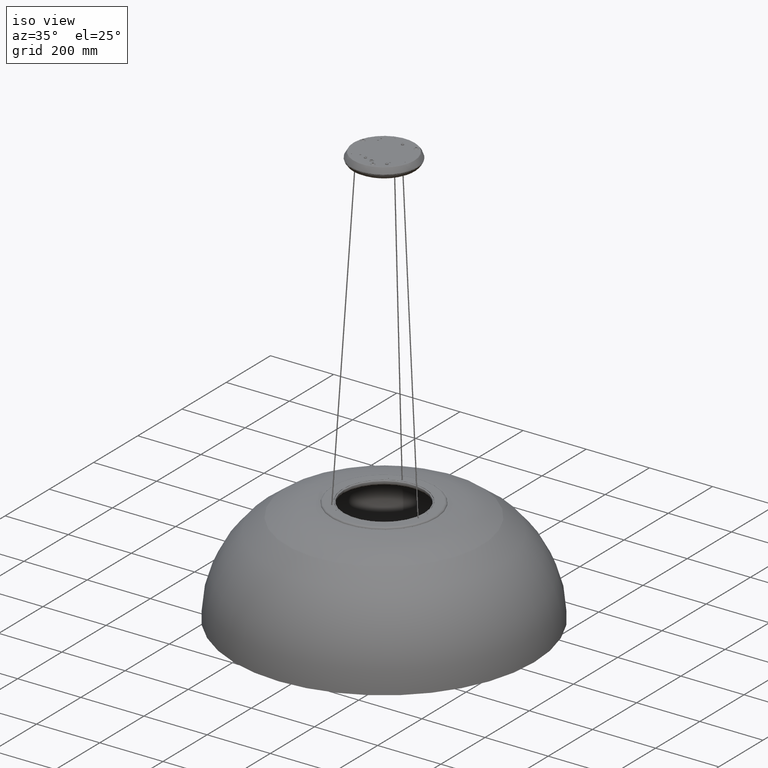
[diagram: clean part render]
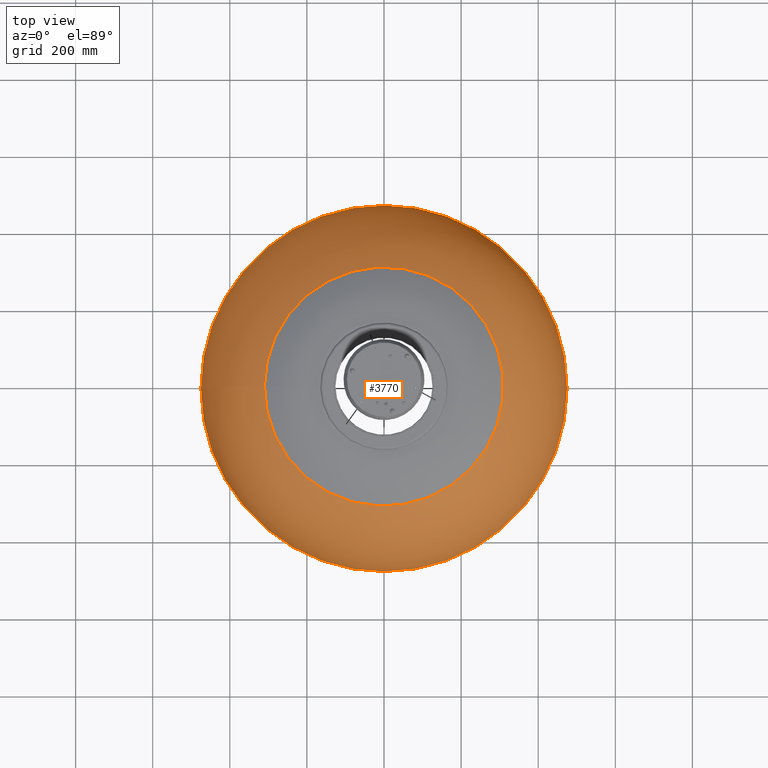
[diagram: tour spotlight — one face highlighted and labeled with its STEP entity id]
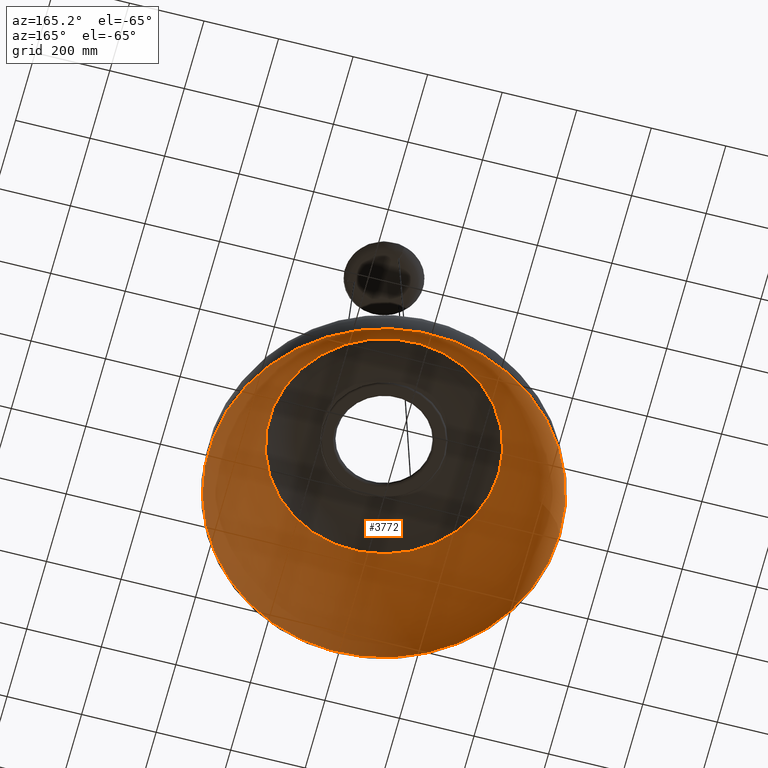
[diagram: tour spotlight — one face highlighted and labeled with its STEP entity id]
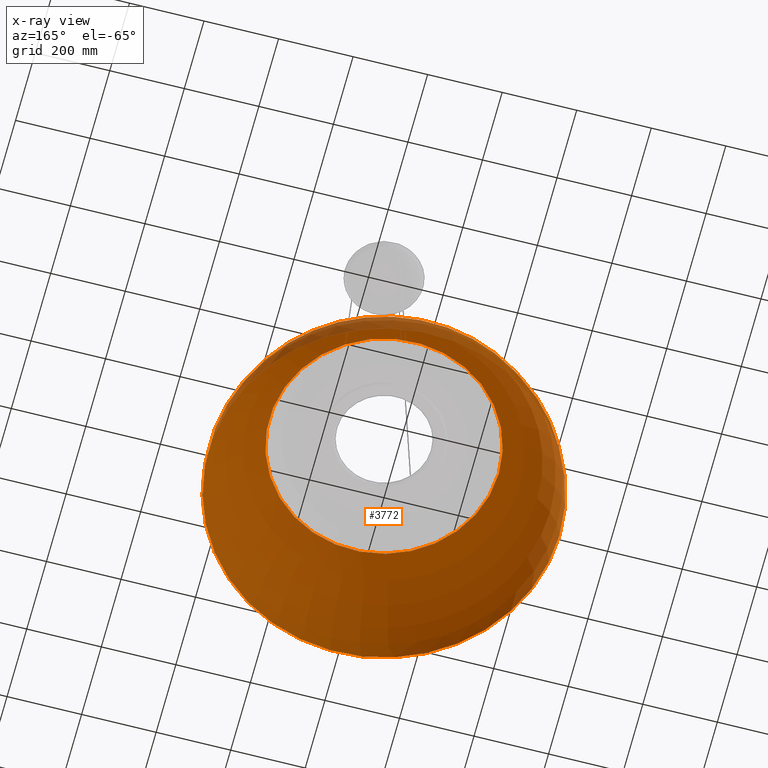
[diagram: x-ray of the same camera — body ghosted, this tour face saturated]
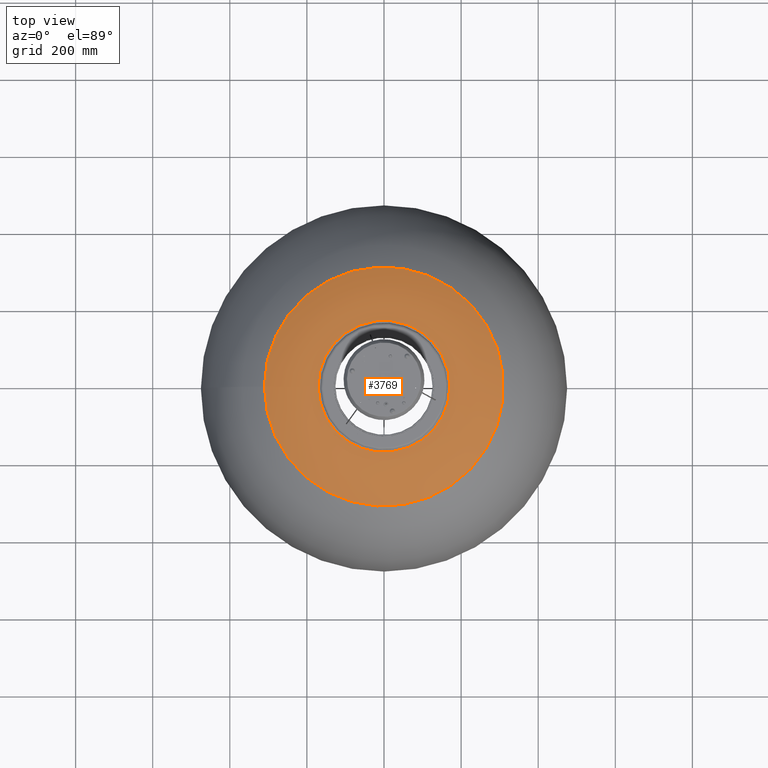
[diagram: tour spotlight — one face highlighted and labeled with its STEP entity id]
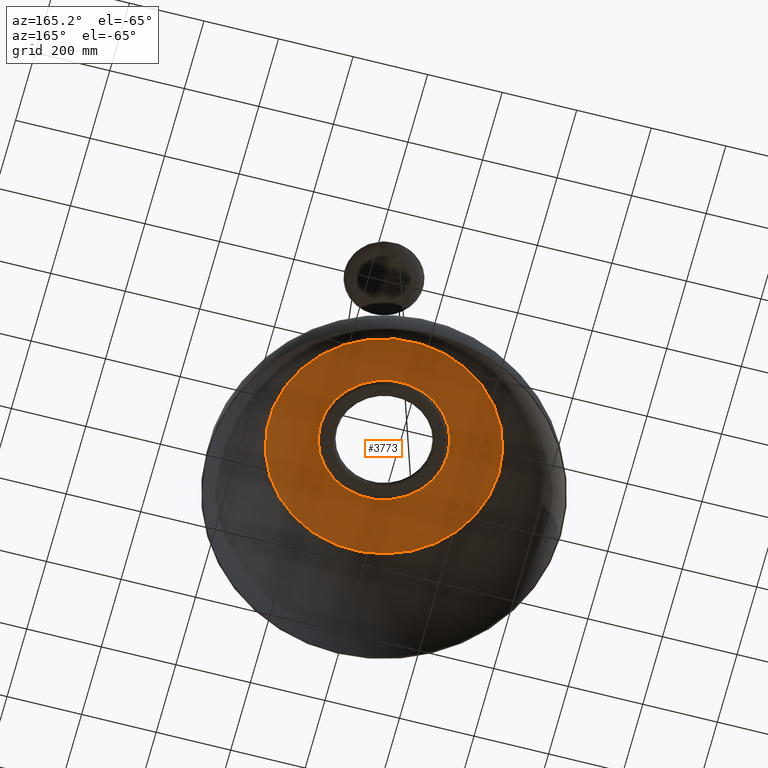
[diagram: tour spotlight — one face highlighted and labeled with its STEP entity id]
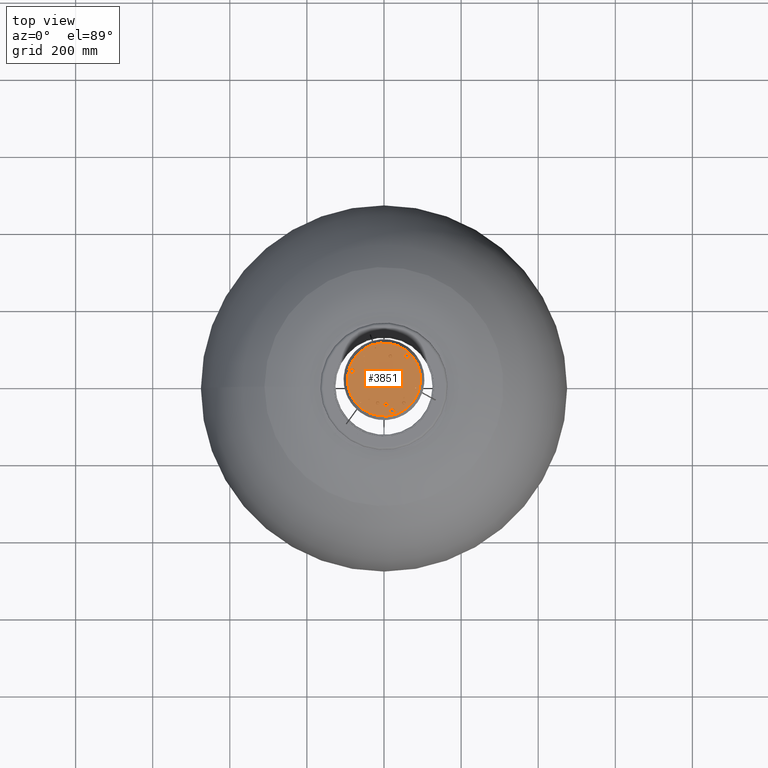
[diagram: tour spotlight — one face highlighted and labeled with its STEP entity id]
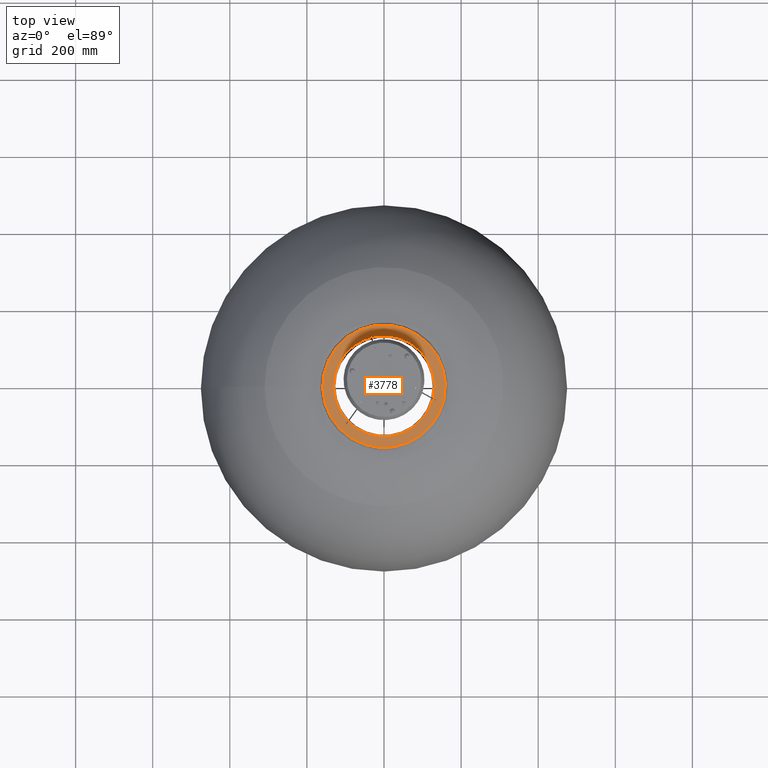
[diagram: tour spotlight — one face highlighted and labeled with its STEP entity id]
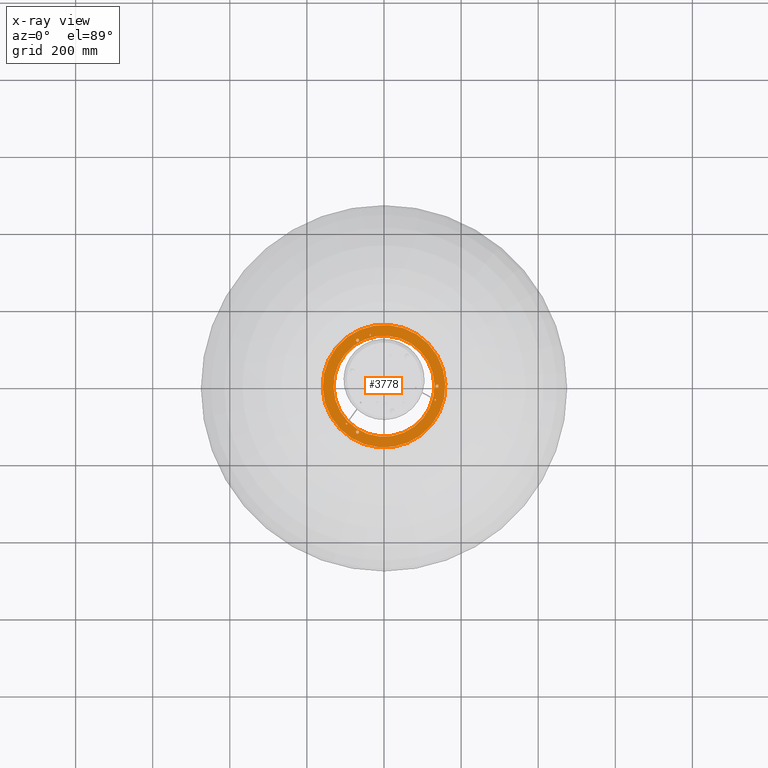
[diagram: x-ray of the same camera — body ghosted, this tour face saturated]
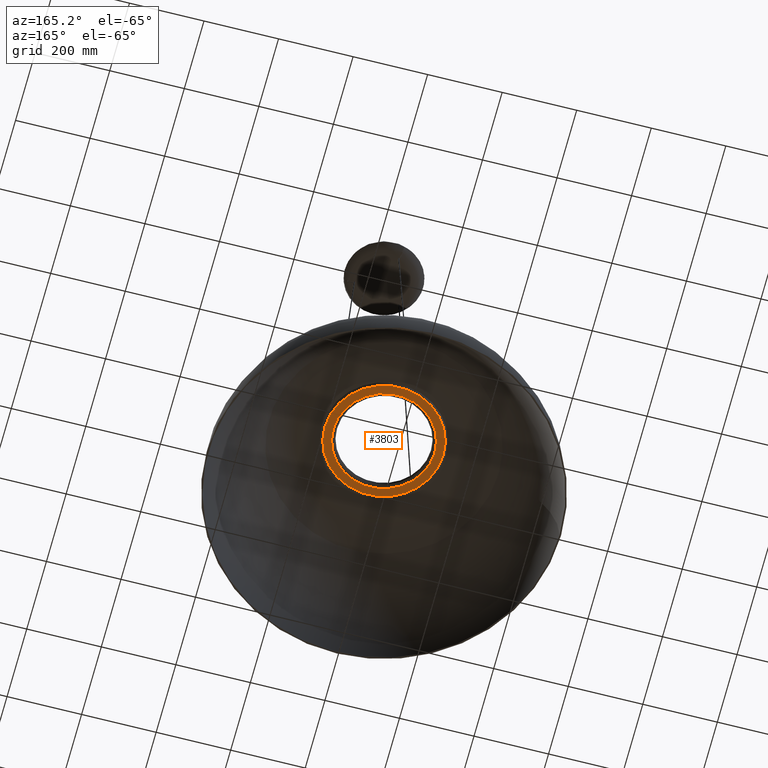
[diagram: tour spotlight — one face highlighted and labeled with its STEP entity id]
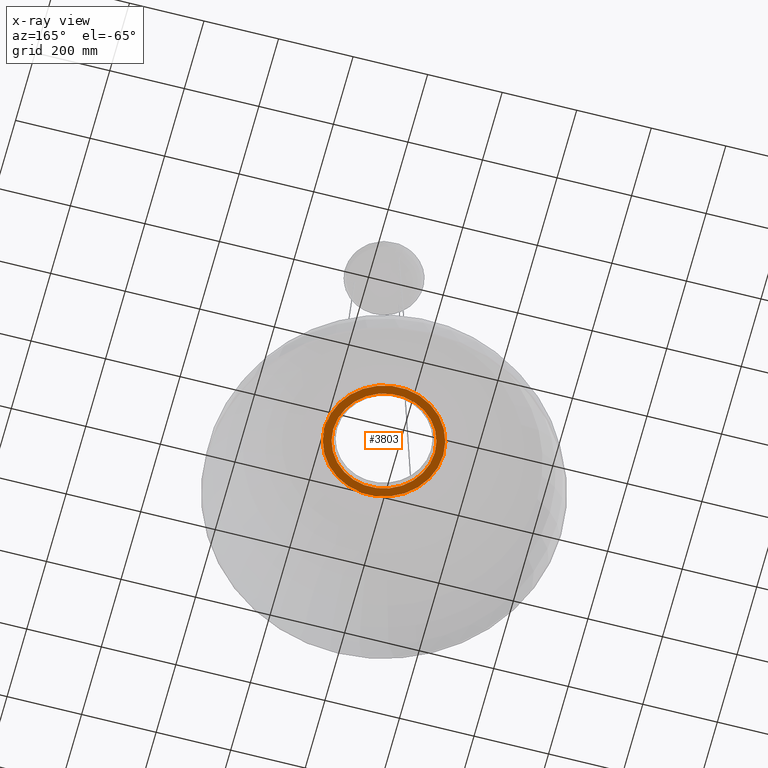
[diagram: x-ray of the same camera — body ghosted, this tour face saturated]
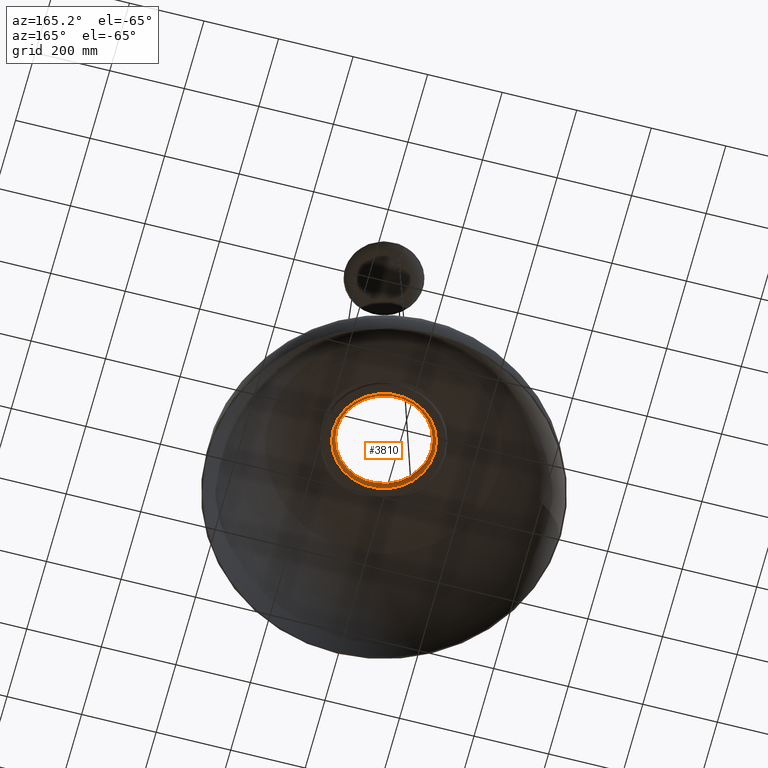
[diagram: tour spotlight — one face highlighted and labeled with its STEP entity id]
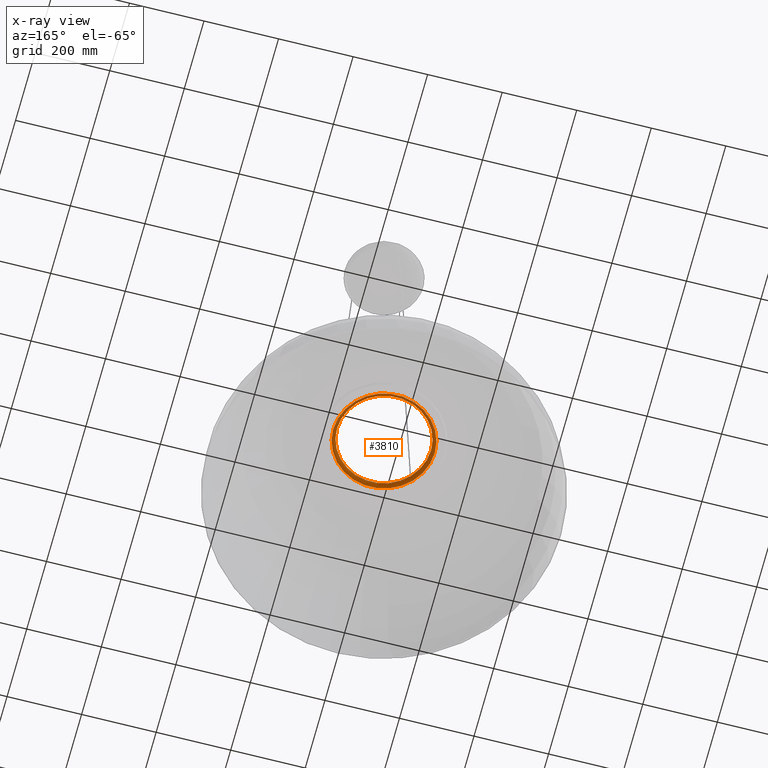
[diagram: x-ray of the same camera — body ghosted, this tour face saturated]
A machine part: a face-by-face anatomy tour. The part has 498 B-rep faces; the first image is the clean iso view, then the 8 largest visible faces are spotlighted one at a time (largest first), each with its STEP entity span.

Face 1 — top view, entity #3770. In plain terms, the highlighted toroidal blend (fillet) surface has major radius 135 mm and minor (blend) radius 340 mm.
Definition (entity closure, byte-faithful):
#760=DEGENERATE_TOROIDAL_SURFACE('',#4901,134.999999999998,340.,.T.);
#770=ORIENTED_EDGE('',*,*,#1741,.F.);
#771=ORIENTED_EDGE('',*,*,#1740,.T.);
#1740=EDGE_CURVE('',#2226,#2226,#2591,.T.);
#1741=EDGE_CURVE('',#2227,#2227,#2592,.T.);
#2226=VERTEX_POINT('',#6640);
#2227=VERTEX_POINT('',#6643);
#2591=CIRCLE('',#4900,310.126776236822);
#2592=CIRCLE('',#4902,474.999999999998);
#2782=EDGE_LOOP('',(#770));
#2783=EDGE_LOOP('',(#771));
#3200=FACE_BOUND('',#2782,.T.);
#3201=FACE_BOUND('',#2783,.T.);
#3770=ADVANCED_FACE('',(#3200,#3201),#760,.T.);
#4900=AXIS2_PLACEMENT_3D('',#6639,#5409,#5410);
#4901=AXIS2_PLACEMENT_3D('',#6641,#5411,#5412);
#4902=AXIS2_PLACEMENT_3D('',#6642,#5413,#5414);
#5409=DIRECTION('',(0.,0.,-1.));
#5410=DIRECTION('',(-1.,0.,0.));
#5411=DIRECTION('',(0.,0.,-1.));
#5412=DIRECTION('',(-1.,0.,0.));
#5413=DIRECTION('',(0.,0.,-1.));
#5414=DIRECTION('',(-1.,0.,0.));
#6639=CARTESIAN_POINT('',(0.,0.,291.428571428571));
#6640=CARTESIAN_POINT('',(-310.126776236822,0.,291.428571428571));
#6641=CARTESIAN_POINT('',(0.,0.,0.));
#6642=CARTESIAN_POINT('',(0.,0.,4.16333634234434E-14));
#6643=CARTESIAN_POINT('',(-474.999999999998,0.,4.16333634234434E-14));

Face 2 — auxiliary view, entity #3772. An x-ray twin of the same camera follows (body ghosted, this face saturated) — the face is partly hidden behind the body. In plain terms, the highlighted toroidal blend (fillet) surface has major radius 135 mm and minor (blend) radius 336 mm.
Definition (entity closure, byte-faithful):
#761=DEGENERATE_TOROIDAL_SURFACE('',#4905,134.999999999998,336.,.T.);
#774=ORIENTED_EDGE('',*,*,#1743,.F.);
#775=ORIENTED_EDGE('',*,*,#1742,.T.);
#1742=EDGE_CURVE('',#2228,#2228,#2593,.T.);
#1743=EDGE_CURVE('',#2229,#2229,#2594,.T.);
#2228=VERTEX_POINT('',#6646);
#2229=VERTEX_POINT('',#6649);
#2593=CIRCLE('',#4904,471.);
#2594=CIRCLE('',#4906,308.066461222271);
#2786=EDGE_LOOP('',(#774));
#2787=EDGE_LOOP('',(#775));
#3204=FACE_BOUND('',#2786,.T.);
#3205=FACE_BOUND('',#2787,.T.);
#3772=ADVANCED_FACE('',(#3204,#3205),#761,.F.);
#4904=AXIS2_PLACEMENT_3D('',#6645,#5417,#5418);
#4905=AXIS2_PLACEMENT_3D('',#6647,#5419,#5420);
#4906=AXIS2_PLACEMENT_3D('',#6648,#5421,#5422);
#5417=DIRECTION('',(0.,0.,-1.));
#5418=DIRECTION('',(-1.,0.,0.));
#5419=DIRECTION('',(0.,0.,-1.));
#5420=DIRECTION('',(-1.,0.,0.));
#5421=DIRECTION('',(0.,0.,-1.));
#5422=DIRECTION('',(-1.,0.,0.));
#6645=CARTESIAN_POINT('',(0.,0.,0.));
#6646=CARTESIAN_POINT('',(-471.,0.,0.));
#6647=CARTESIAN_POINT('',(0.,0.,0.));
#6648=CARTESIAN_POINT('',(0.,0.,287.999999999999));
#6649=CARTESIAN_POINT('',(-308.066461222271,0.,287.999999999999));

Face 3 — top view, entity #3769. In plain terms, the highlighted toroidal blend (fillet) surface has major radius 171.055 mm and minor (blend) radius 270 mm.
Definition (entity closure, byte-faithful):
#759=DEGENERATE_TOROIDAL_SURFACE('',#4899,171.05551275464,270.,.T.);
#768=ORIENTED_EDGE('',*,*,#1740,.F.);
#769=ORIENTED_EDGE('',*,*,#1739,.T.);
#1739=EDGE_CURVE('',#2225,#2225,#2590,.T.);
#1740=EDGE_CURVE('',#2226,#2226,#2591,.T.);
#2225=VERTEX_POINT('',#6637);
#2226=VERTEX_POINT('',#6640);
#2590=CIRCLE('',#4898,171.05551275464);
#2591=CIRCLE('',#4900,310.126776236822);
#2780=EDGE_LOOP('',(#768));
#2781=EDGE_LOOP('',(#769));
#3198=FACE_BOUND('',#2780,.T.);
#3199=FACE_BOUND('',#2781,.T.);
#3769=ADVANCED_FACE('',(#3198,#3199),#759,.T.);
#4898=AXIS2_PLACEMENT_3D('',#6636,#5405,#5406);
#4899=AXIS2_PLACEMENT_3D('',#6638,#5407,#5408);
#4900=AXIS2_PLACEMENT_3D('',#6639,#5409,#5410);
#5405=DIRECTION('',(0.,0.,-1.));
#5406=DIRECTION('',(-1.,0.,0.));
#5407=DIRECTION('',(0.,0.,-1.));
#5408=DIRECTION('',(-1.,0.,0.));
#5409=DIRECTION('',(0.,0.,-1.));
#5410=DIRECTION('',(-1.,0.,0.));
#6636=CARTESIAN_POINT('',(0.,0.,330.));
#6637=CARTESIAN_POINT('',(-171.05551275464,0.,330.));
#6638=CARTESIAN_POINT('',(0.,0.,60.));
#6639=CARTESIAN_POINT('',(0.,0.,291.428571428571));
#6640=CARTESIAN_POINT('',(-310.126776236822,0.,291.428571428571));

Face 4 — auxiliary view, entity #3773. In plain terms, the highlighted toroidal blend (fillet) surface has major radius 171.055 mm and minor (blend) radius 266 mm.
Definition (entity closure, byte-faithful):
#762=DEGENERATE_TOROIDAL_SURFACE('',#4907,171.05551275464,266.,.T.);
#776=ORIENTED_EDGE('',*,*,#1737,.F.);
#777=ORIENTED_EDGE('',*,*,#1743,.T.);
#1737=EDGE_CURVE('',#2223,#2223,#2588,.T.);
#1743=EDGE_CURVE('',#2229,#2229,#2594,.T.);
#2223=VERTEX_POINT('',#6632);
#2229=VERTEX_POINT('',#6649);
#2588=CIRCLE('',#4895,171.05551275464);
#2594=CIRCLE('',#4906,308.066461222271);
#2788=EDGE_LOOP('',(#776));
#2789=EDGE_LOOP('',(#777));
#3206=FACE_BOUND('',#2788,.T.);
#3207=FACE_BOUND('',#2789,.T.);
#3773=ADVANCED_FACE('',(#3206,#3207),#762,.F.);
#4895=AXIS2_PLACEMENT_3D('',#6631,#5399,#5400);
#4906=AXIS2_PLACEMENT_3D('',#6648,#5421,#5422);
#4907=AXIS2_PLACEMENT_3D('',#6650,#5423,#5424);
#5399=DIRECTION('',(0.,0.,-1.));
#5400=DIRECTION('',(-1.,0.,0.));
#5421=DIRECTION('',(0.,0.,-1.));
#5422=DIRECTION('',(-1.,0.,0.));
#5423=DIRECTION('',(0.,0.,-1.));
#5424=DIRECTION('',(-1.,0.,0.));
#6631=CARTESIAN_POINT('',(0.,0.,326.));
#6632=CARTESIAN_POINT('',(-171.05551275464,0.,326.));
#6648=CARTESIAN_POINT('',(0.,0.,287.999999999999));
#6649=CARTESIAN_POINT('',(-308.066461222271,0.,287.999999999999));
#6650=CARTESIAN_POINT('',(0.,0.,60.));

Face 5 — top view, entity #3851. In plain terms, the highlighted planar face has unit normal (0, 0, -1).
Definition (entity closure, byte-faithful):
#1023=ORIENTED_EDGE('',*,*,#1873,.T.);
#1024=ORIENTED_EDGE('',*,*,#1874,.T.);
#1025=ORIENTED_EDGE('',*,*,#1875,.T.);
#1026=ORIENTED_EDGE('',*,*,#1876,.T.);
#1027=ORIENTED_EDGE('',*,*,#1877,.T.);
#1028=ORIENTED_EDGE('',*,*,#1878,.T.);
#1029=ORIENTED_EDGE('',*,*,#1879,.T.);
#1030=ORIENTED_EDGE('',*,*,#1880,.T.);
#1031=ORIENTED_EDGE('',*,*,#1846,.T.);
#1032=ORIENTED_EDGE('',*,*,#1848,.T.);
#1033=ORIENTED_EDGE('',*,*,#1881,.T.);
#1034=ORIENTED_EDGE('',*,*,#1851,.F.);
#1035=ORIENTED_EDGE('',*,*,#1857,.F.);
#1036=ORIENTED_EDGE('',*,*,#1882,.F.);
#1037=ORIENTED_EDGE('',*,*,#1883,.F.);
#1846=EDGE_CURVE('',#2317,#2317,#2655,.T.);
#1848=EDGE_CURVE('',#2319,#2319,#2657,.T.);
#1851=EDGE_CURVE('',#2322,#2322,#2660,.F.);
#1857=EDGE_CURVE('',#2328,#2328,#2666,.F.);
#1873=EDGE_CURVE('',#2344,#2344,#2682,.T.);
#1874=EDGE_CURVE('',#2345,#2345,#2683,.T.);
#1875=EDGE_CURVE('',#2346,#2346,#2684,.T.);
#1876=EDGE_CURVE('',#2347,#2347,#2685,.T.);
#1877=EDGE_CURVE('',#2348,#2348,#2686,.T.);
#1878=EDGE_CURVE('',#2349,#2349,#2687,.T.);
#1879=EDGE_CURVE('',#2350,#2350,#2688,.T.);
#1880=EDGE_CURVE('',#2351,#2351,#2689,.T.);
#1881=EDGE_CURVE('',#2352,#2352,#2690,.T.);
#1882=EDGE_CURVE('',#2353,#2353,#2691,.T.);
#1883=EDGE_CURVE('',#2354,#2354,#2692,.F.);
#2317=VERTEX_POINT('',#6913);
#2319=VERTEX_POINT('',#6918);
#2322=VERTEX_POINT('',#6925);
#2328=VERTEX_POINT('',#6942);
#2344=VERTEX_POINT('',#6980);
#2345=VERTEX_POINT('',#6982);
#2346=VERTEX_POINT('',#6984);
#2347=VERTEX_POINT('',#6986);
#2348=VERTEX_POINT('',#6988);
#2349=VERTEX_POINT('',#6990);
#2350=VERTEX_POINT('',#6992);
#2351=VERTEX_POINT('',#6994);
#2352=VERTEX_POINT('',#6996);
#2353=VERTEX_POINT('',#6998);
#2354=VERTEX_POINT('',#7000);
#2655=CIRCLE('',#5040,1.);
#2657=CIRCLE('',#5043,1.);
#2660=CIRCLE('',#5047,7.12132034355874);
#2666=CIRCLE('',#5058,7.12132034355874);
#2682=CIRCLE('',#5080,2.25);
#2683=CIRCLE('',#5081,2.25);
#2684=CIRCLE('',#5082,2.);
#2685=CIRCLE('',#5083,2.);
#2686=CIRCLE('',#5084,2.25);
#2687=CIRCLE('',#5085,5.125);
#2688=CIRCLE('',#5086,2.);
#2689=CIRCLE('',#5087,2.);
#2690=CIRCLE('',#5088,1.);
#2691=CIRCLE('',#5089,95.);
#2692=CIRCLE('',#5090,7.12132034355874);
#2949=EDGE_LOOP('',(#1023));
#2950=EDGE_LOOP('',(#1024));
#2951=EDGE_LOOP('',(#1025));
#2952=EDGE_LOOP('',(#1026));
#2953=EDGE_LOOP('',(#1027));
#2954=EDGE_LOOP('',(#1028));
#2955=EDGE_LOOP('',(#1029));
#2956=EDGE_LOOP('',(#1030));
#2957=EDGE_LOOP('',(#1031));
#2958=EDGE_LOOP('',(#1032));
#2959=EDGE_LOOP('',(#1033));
#2960=EDGE_LOOP('',(#1034));
#2961=EDGE_LOOP('',(#1035));
#2962=EDGE_LOOP('',(#1036));
#2963=EDGE_LOOP('',(#1037));
#3370=FACE_BOUND('',#2949,.T.);
#3371=FACE_BOUND('',#2950,.T.);
#3372=FACE_BOUND('',#2951,.T.);
#3373=FACE_BOUND('',#2952,.T.);
#3374=FACE_BOUND('',#2953,.T.);
#3375=FACE_BOUND('',#2954,.T.);
#3376=FACE_BOUND('',#2955,.T.);
#3377=FACE_BOUND('',#2956,.T.);
#3378=FACE_BOUND('',#2957,.T.);
#3379=FACE_BOUND('',#2958,.T.);
#3380=FACE_BOUND('',#2959,.T.);
#3381=FACE_BOUND('',#2960,.T.);
#3382=FACE_BOUND('',#2961,.T.);
#3383=FACE_BOUND('',#2962,.T.);
#3384=FACE_BOUND('',#2963,.T.);
#3644=PLANE('',#5079);
#3851=ADVANCED_FACE('',(#3370,#3371,#3372,#3373,#3374,#3375,#3376,#3377,
#3378,#3379,#3380,#3381,#3382,#3383,#3384),#3644,.F.);
#5040=AXIS2_PLACEMENT_3D('',#6912,#5731,#5732);
#5043=AXIS2_PLACEMENT_3D('',#6917,#5737,#5738);
#5047=AXIS2_PLACEMENT_3D('',#6924,#5745,#5746);
#5058=AXIS2_PLACEMENT_3D('',#6941,#5767,#5768);
#5079=AXIS2_PLACEMENT_3D('',#6978,#5809,#5810);
#5080=AXIS2_PLACEMENT_3D('',#6979,#5811,#5812);
#5081=AXIS2_PLACEMENT_3D('',#6981,#5813,#5814);
#5082=AXIS2_PLACEMENT_3D('',#6983,#5815,#5816);
#5083=AXIS2_PLACEMENT_3D('',#6985,#5817,#5818);
#5084=AXIS2_PLACEMENT_3D('',#6987,#5819,#5820);
#5085=AXIS2_PLACEMENT_3D('',#6989,#5821,#5822);
#5086=AXIS2_PLACEMENT_3D('',#6991,#5823,#5824);
#5087=AXIS2_PLACEMENT_3D('',#6993,#5825,#5826);
#5088=AXIS2_PLACEMENT_3D('',#6995,#5827,#5828);
#5089=AXIS2_PLACEMENT_3D('',#6997,#5829,#5830);
#5090=AXIS2_PLACEMENT_3D('',#6999,#5831,#5832);
#5731=DIRECTION('',(0.,0.,-1.));
#5732=DIRECTION('',(0.500000000000001,0.866025403784438,0.));
#5737=DIRECTION('',(0.,0.,-1.));
#5738=DIRECTION('',(0.5,-0.866025403784439,0.));
#5745=DIRECTION('',(0.,0.,-1.));
#5746=DIRECTION('',(0.500000000000001,0.866025403784438,0.));
#5767=DIRECTION('',(0.,0.,-1.));
#5768=DIRECTION('',(0.5,-0.866025403784439,0.));
#5809=DIRECTION('',(0.,0.,-1.));
#5810=DIRECTION('',(-1.,0.,0.));
#5811=DIRECTION('',(0.,0.,-1.));
#5812=DIRECTION('',(-1.,0.,0.));
#5813=DIRECTION('',(0.,0.,-1.));
#5814=DIRECTION('',(-1.,0.,0.));
#5815=DIRECTION('',(0.,0.,-1.));
#5816=DIRECTION('',(-1.,0.,0.));
#5817=DIRECTION('',(0.,0.,-1.));
#5818=DIRECTION('',(-1.,0.,0.));
#5819=DIRECTION('',(0.,0.,-1.));
#5820=DIRECTION('',(-1.,0.,0.));
#5821=DIRECTION('',(0.,0.,-1.));
#5822=DIRECTION('',(-1.,0.,0.));
#5823=DIRECTION('',(0.,0.,-1.));
#5824=DIRECTION('',(-1.,0.,0.));
#5825=DIRECTION('',(0.,0.,-1.));
#5826=DIRECTION('',(-1.,0.,0.));
#5827=DIRECTION('',(0.,0.,-1.));
#5828=DIRECTION('',(-1.,0.,0.));
#5829=DIRECTION('',(0.,0.,-1.));
#5830=DIRECTION('',(-1.,0.,0.));
#5831=DIRECTION('',(0.,0.,-1.));
#5832=DIRECTION('',(-1.,0.,0.));
#6912=CARTESIAN_POINT('',(-42.5000000000001,-73.6121593216773,27.0000000000009));
#6913=CARTESIAN_POINT('',(-42.0000000000001,-72.7461339178928,27.0000000000009));
#6917=CARTESIAN_POINT('',(-42.5,73.6121593216773,27.0000000000009));
#6918=CARTESIAN_POINT('',(-42.,72.7461339178929,27.0000000000009));
#6924=CARTESIAN_POINT('',(42.5,73.6121593216773,27.0000000000009));
#6925=CARTESIAN_POINT('',(46.0606601717794,79.779403647686,27.0000000000009));
#6941=CARTESIAN_POINT('',(42.5,-73.6121593216773,27.0000000000009));
#6942=CARTESIAN_POINT('',(46.0606601717793,-79.7794036476861,27.0000000000009));
#6978=CARTESIAN_POINT('',(-95.,0.,27.0000000000009));
#6979=CARTESIAN_POINT('',(-1.56142284887325E-14,-63.,27.0000000000009));
#6980=CARTESIAN_POINT('',(-2.25000000000002,-63.,27.0000000000009));
#6981=CARTESIAN_POINT('',(7.53134120960511E-15,63.,27.0000000000009));
#6982=CARTESIAN_POINT('',(-2.24999999999999,63.,27.0000000000009));
#6983=CARTESIAN_POINT('',(-62.25,32.25,27.0000000000009));
#6984=CARTESIAN_POINT('',(-64.25,32.25,27.0000000000009));
#6985=CARTESIAN_POINT('',(62.25,-32.25,27.0000000000009));
#6986=CARTESIAN_POINT('',(60.25,-32.25,27.0000000000009));
#6987=CARTESIAN_POINT('',(-24.,-60.,27.0000000000009));
#6988=CARTESIAN_POINT('',(-26.25,-60.,27.0000000000009));
#6989=CARTESIAN_POINT('',(22.2313093161684,-61.0800203510841,27.0000000000009));
#6990=CARTESIAN_POINT('',(17.1063093161684,-61.0800203510841,27.0000000000009));
#6991=CARTESIAN_POINT('',(65.25,-45.25,27.0000000000009));
#6992=CARTESIAN_POINT('',(63.25,-45.25,27.0000000000009));
#6993=CARTESIAN_POINT('',(-65.25,45.25,27.0000000000009));
#6994=CARTESIAN_POINT('',(-67.25,45.25,27.0000000000009));
#6995=CARTESIAN_POINT('',(85.,-1.87860823480796E-14,27.0000000000009));
#6996=CARTESIAN_POINT('',(84.,-1.87860823480796E-14,27.0000000000009));
#6997=CARTESIAN_POINT('',(0.,0.,27.0000000000019));
#6998=CARTESIAN_POINT('',(-95.,0.,27.0000000000019));
#6999=CARTESIAN_POINT('',(-85.,0.,27.0000000000009));
#7000=CARTESIAN_POINT('',(-92.1213203435587,0.,27.0000000000009));

Face 6 — top view, entity #3778. An x-ray twin of the same camera follows (body ghosted, this face saturated) — the face is partly hidden behind the body. In plain terms, the highlighted planar face has unit normal (0, 0, -1).
Definition (entity closure, byte-faithful):
#792=ORIENTED_EDGE('',*,*,#1756,.T.);
#793=ORIENTED_EDGE('',*,*,#1757,.F.);
#794=ORIENTED_EDGE('',*,*,#1758,.F.);
#795=ORIENTED_EDGE('',*,*,#1759,.F.);
#796=ORIENTED_EDGE('',*,*,#1760,.T.);
#797=ORIENTED_EDGE('',*,*,#1761,.T.);
#798=ORIENTED_EDGE('',*,*,#1762,.T.);
#799=ORIENTED_EDGE('',*,*,#1763,.T.);
#1756=EDGE_CURVE('',#2242,#2242,#2607,.T.);
#1757=EDGE_CURVE('',#2243,#2243,#2608,.T.);
#1758=EDGE_CURVE('',#2244,#2244,#2609,.T.);
#1759=EDGE_CURVE('',#2245,#2245,#2610,.T.);
#1760=EDGE_CURVE('',#2246,#2246,#2611,.T.);
#1761=EDGE_CURVE('',#2247,#2247,#2612,.T.);
#1762=EDGE_CURVE('',#2248,#2248,#2613,.T.);
#1763=EDGE_CURVE('',#2249,#2249,#2614,.F.);
#2242=VERTEX_POINT('',#6682);
#2243=VERTEX_POINT('',#6684);
#2244=VERTEX_POINT('',#6686);
#2245=VERTEX_POINT('',#6688);
#2246=VERTEX_POINT('',#6690);
#2247=VERTEX_POINT('',#6692);
#2248=VERTEX_POINT('',#6694);
#2249=VERTEX_POINT('',#6696);
#2607=CIRCLE('',#4926,131.);
#2608=CIRCLE('',#4927,1.9);
#2609=CIRCLE('',#4928,1.9);
#2610=CIRCLE('',#4929,1.9);
#2611=CIRCLE('',#4930,4.);
#2612=CIRCLE('',#4931,4.);
#2613=CIRCLE('',#4932,4.);
#2614=CIRCLE('',#4933,159.);
#2804=EDGE_LOOP('',(#792));
#2805=EDGE_LOOP('',(#793));
#2806=EDGE_LOOP('',(#794));
#2807=EDGE_LOOP('',(#795));
#2808=EDGE_LOOP('',(#796));
#2809=EDGE_LOOP('',(#797));
#2810=EDGE_LOOP('',(#798));
#2811=EDGE_LOOP('',(#799));
#3222=FACE_BOUND('',#2804,.T.);
#3223=FACE_BOUND('',#2805,.T.);
#3224=FACE_BOUND('',#2806,.T.);
#3225=FACE_BOUND('',#2807,.T.);
#3226=FACE_BOUND('',#2808,.T.);
#3227=FACE_BOUND('',#2809,.T.);
#3228=FACE_BOUND('',#2810,.T.);
#3229=FACE_BOUND('',#2811,.T.);
#3622=PLANE('',#4925);
#3778=ADVANCED_FACE('',(#3222,#3223,#3224,#3225,#3226,#3227,#3228,#3229),
#3622,.F.);
#4925=AXIS2_PLACEMENT_3D('',#6680,#5459,#5460);
#4926=AXIS2_PLACEMENT_3D('',#6681,#5461,#5462);
#4927=AXIS2_PLACEMENT_3D('',#6683,#5463,#5464);
#4928=AXIS2_PLACEMENT_3D('',#6685,#5465,#5466);
#4929=AXIS2_PLACEMENT_3D('',#6687,#5467,#5468);
#4930=AXIS2_PLACEMENT_3D('',#6689,#5469,#5470);
#4931=AXIS2_PLACEMENT_3D('',#6691,#5471,#5472);
#4932=AXIS2_PLACEMENT_3D('',#6693,#5473,#5474);
#4933=AXIS2_PLACEMENT_3D('',#6695,#5475,#5476);
#5459=DIRECTION('',(0.,0.,-1.));
#5460=DIRECTION('',(-1.,0.,0.));
#5461=DIRECTION('',(0.,0.,-1.));
#5462=DIRECTION('',(-1.,0.,0.));
#5463=DIRECTION('',(0.,0.,1.));
#5464=DIRECTION('',(-0.866025403784438,-0.500000000000001,0.));
#5465=DIRECTION('',(0.,0.,1.));
#5466=DIRECTION('',(0.866025403784439,-0.5,0.));
#5467=DIRECTION('',(0.,0.,1.));
#5468=DIRECTION('',(0.,1.,0.));
#5469=DIRECTION('',(0.,0.,-1.));
#5470=DIRECTION('',(0.,1.,0.));
#5471=DIRECTION('',(0.,0.,-1.));
#5472=DIRECTION('',(0.,1.,0.));
#5473=DIRECTION('',(0.,0.,-1.));
#5474=DIRECTION('',(0.,1.,0.));
#5475=DIRECTION('',(0.,0.,-1.));
#5476=DIRECTION('',(-1.,0.,0.));
#6680=CARTESIAN_POINT('',(165.,0.,274.5));
#6681=CARTESIAN_POINT('',(0.,0.,274.5));
#6682=CARTESIAN_POINT('',(-131.,0.,274.5));
#6683=CARTESIAN_POINT('',(-132.814801114747,-35.5876187015967,274.5));
#6684=CARTESIAN_POINT('',(-134.460249381937,-36.5376187015967,274.5));
#6685=CARTESIAN_POINT('',(97.2271824131503,-97.2271824131502,274.5));
#6686=CARTESIAN_POINT('',(98.8726306803407,-98.1771824131502,274.5));
#6687=CARTESIAN_POINT('',(35.5876187015966,132.814801114747,274.5));
#6688=CARTESIAN_POINT('',(35.5876187015966,134.714801114747,274.5));
#6689=CARTESIAN_POINT('',(119.07849302036,-68.7500000000001,274.5));
#6690=CARTESIAN_POINT('',(119.07849302036,-64.7500000000001,274.5));
#6691=CARTESIAN_POINT('',(-119.07849302036,-68.7499999999999,274.5));
#6692=CARTESIAN_POINT('',(-119.07849302036,-64.7499999999999,274.5));
#6693=CARTESIAN_POINT('',(0.,137.5,274.5));
#6694=CARTESIAN_POINT('',(0.,141.5,274.5));
#6695=CARTESIAN_POINT('',(0.,0.,274.5));
#6696=CARTESIAN_POINT('',(-159.,0.,274.5));

Face 7 — auxiliary view, entity #3803. An x-ray twin of the same camera follows (body ghosted, this face saturated) — the face is partly hidden behind the body. In plain terms, the highlighted planar face has unit normal (0, 0, -1).
Definition (entity closure, byte-faithful):
#885=ORIENTED_EDGE('',*,*,#1812,.T.);
#886=ORIENTED_EDGE('',*,*,#1813,.T.);
#1812=EDGE_CURVE('',#2286,#2286,#2639,.F.);
#1813=EDGE_CURVE('',#2287,#2287,#2640,.T.);
#2286=VERTEX_POINT('',#6808);
#2287=VERTEX_POINT('',#6810);
#2639=CIRCLE('',#4984,136.);
#2640=CIRCLE('',#4985,159.);
#2857=EDGE_LOOP('',(#885));
#2858=EDGE_LOOP('',(#886));
#3275=FACE_BOUND('',#2857,.T.);
#3276=FACE_BOUND('',#2858,.T.);
#3626=PLANE('',#4983);
#3803=ADVANCED_FACE('',(#3275,#3276),#3626,.T.);
#4983=AXIS2_PLACEMENT_3D('',#6806,#5599,#5600);
#4984=AXIS2_PLACEMENT_3D('',#6807,#5601,#5602);
#4985=AXIS2_PLACEMENT_3D('',#6809,#5603,#5604);
#5599=DIRECTION('',(0.,0.,-1.));
#5600=DIRECTION('',(-1.,0.,0.));
#5601=DIRECTION('',(0.,0.,-1.));
#5602=DIRECTION('',(-1.,0.,0.));
#5603=DIRECTION('',(0.,0.,-1.));
#5604=DIRECTION('',(-1.,0.,0.));
#6806=CARTESIAN_POINT('',(165.,0.,259.5));
#6807=CARTESIAN_POINT('',(0.,0.,259.5));
#6808=CARTESIAN_POINT('',(-136.,0.,259.5));
#6809=CARTESIAN_POINT('',(0.,0.,259.5));
#6810=CARTESIAN_POINT('',(-159.,0.,259.5));

Face 8 — auxiliary view, entity #3810. An x-ray twin of the same camera follows (body ghosted, this face saturated) — the face is partly hidden behind the body. In plain terms, the highlighted toroidal blend (fillet) surface has major radius 136 mm and minor (blend) radius 10 mm.
Definition (entity closure, byte-faithful):
#585=TOROIDAL_SURFACE('',#4999,136.,10.);
#898=ORIENTED_EDGE('',*,*,#1820,.F.);
#899=ORIENTED_EDGE('',*,*,#1812,.F.);
#1812=EDGE_CURVE('',#2286,#2286,#2639,.F.);
#1820=EDGE_CURVE('',#2295,#2295,#2647,.T.);
#2286=VERTEX_POINT('',#6808);
#2295=VERTEX_POINT('',#6831);
#2639=CIRCLE('',#4984,136.);
#2647=CIRCLE('',#4998,126.);
#2870=EDGE_LOOP('',(#898));
#2871=EDGE_LOOP('',(#899));
#3289=FACE_BOUND('',#2870,.T.);
#3290=FACE_BOUND('',#2871,.T.);
#3810=ADVANCED_FACE('',(#3289,#3290),#585,.T.);
#4984=AXIS2_PLACEMENT_3D('',#6807,#5601,#5602);
#4998=AXIS2_PLACEMENT_3D('',#6830,#5629,#5630);
#4999=AXIS2_PLACEMENT_3D('',#6832,#5631,#5632);
#5601=DIRECTION('',(0.,0.,-1.));
#5602=DIRECTION('',(-1.,0.,0.));
#5629=DIRECTION('',(0.,0.,-1.));
#5630=DIRECTION('',(-1.,0.,0.));
#5631=DIRECTION('',(0.,0.,-1.));
#5632=DIRECTION('',(-1.,0.,0.));
#6807=CARTESIAN_POINT('',(0.,0.,259.5));
#6808=CARTESIAN_POINT('',(-136.,0.,259.5));
#6830=CARTESIAN_POINT('',(0.,0.,269.5));
#6831=CARTESIAN_POINT('',(-126.,0.,269.5));
#6832=CARTESIAN_POINT('',(0.,0.,269.5));